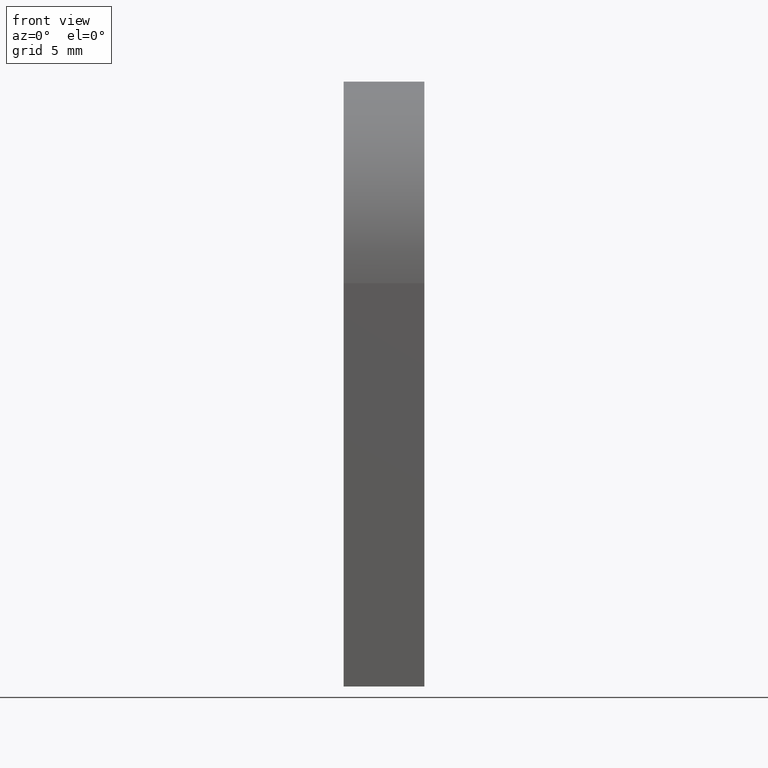
[diagram: clean part render]
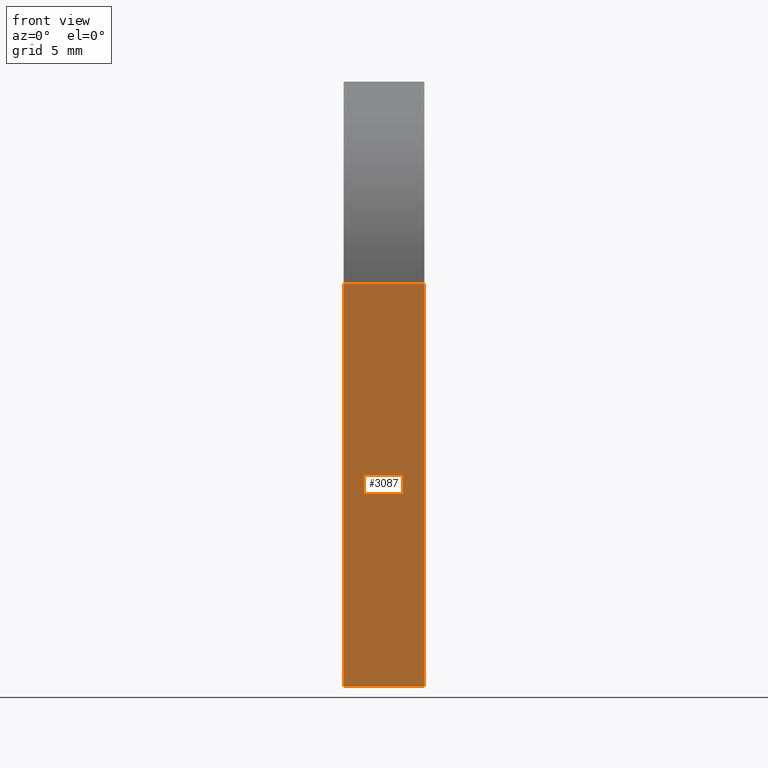
[diagram: same view with one face highlighted and labeled with its STEP entity id]
A machine part, front view. The second image highlights one B-rep face of the part: STEP entity #3087.
In plain terms, the highlighted planar face has unit normal (0, -1, 0).
Its self-contained STEP definition (entity closure, byte-faithful):
#76 = CARTESIAN_POINT ( 'NONE',  ( 2.000000000000000000, -10.00000000000000000, -3.061616997868383000E-015 ) ) ;
#438 = DIRECTION ( 'NONE',  ( -1.000000000000000000, -0.0000000000000000000, -0.0000000000000000000 ) ) ;
#1103 = EDGE_CURVE ( 'NONE', #4537, #1899, #4959, .T. ) ;
#1137 = ORIENTED_EDGE ( 'NONE', *, *, #3159, .T. ) ;
#1451 = DIRECTION ( 'NONE',  ( -1.000000000000000000, -0.0000000000000000000, -0.0000000000000000000 ) ) ;
#1756 = AXIS2_PLACEMENT_3D ( 'NONE', #76, #10573, #7061 ) ;
#1899 = VERTEX_POINT ( 'NONE', #2203 ) ;
#2203 = CARTESIAN_POINT ( 'NONE',  ( -2.000000000000000000, -10.00000000000000000, 19.99999999999999600 ) ) ;
#2790 = VECTOR ( 'NONE', #1451, 1000.000000000000000 ) ;
#3087 = ADVANCED_FACE ( 'NONE', ( #5685 ), #9632, .T. ) ;
#3159 = EDGE_CURVE ( 'NONE', #5457, #4537, #8964, .T. ) ;
#3304 = CARTESIAN_POINT ( 'NONE',  ( 2.000000000000000000, -10.00000000000000000, -3.061616997868383000E-015 ) ) ;
#3499 = CARTESIAN_POINT ( 'NONE',  ( 2.000000000000000000, -10.00000000000000000, 19.99999999999999600 ) ) ;
#3658 = CARTESIAN_POINT ( 'NONE',  ( 2.000000000000000000, -10.00000000000000000, -3.061616997868383000E-015 ) ) ;
#3810 = LINE ( 'NONE', #6847, #6636 ) ;
#3943 = ORIENTED_EDGE ( 'NONE', *, *, #7666, .F. ) ;
#4237 = EDGE_LOOP ( 'NONE', ( #4244, #3943, #1137, #5424 ) ) ;
#4244 = ORIENTED_EDGE ( 'NONE', *, *, #9617, .F. ) ;
#4537 = VERTEX_POINT ( 'NONE', #3499 ) ;
#4959 = LINE ( 'NONE', #9839, #6748 ) ;
#5424 = ORIENTED_EDGE ( 'NONE', *, *, #1103, .T. ) ;
#5457 = VERTEX_POINT ( 'NONE', #3658 ) ;
#5685 = FACE_OUTER_BOUND ( 'NONE', #4237, .T. ) ;
#5975 = DIRECTION ( 'NONE',  ( 0.0000000000000000000, 0.0000000000000000000, 1.000000000000000000 ) ) ;
#6419 = VECTOR ( 'NONE', #10120, 1000.000000000000000 ) ;
#6636 = VECTOR ( 'NONE', #5975, 1000.000000000000000 ) ;
#6748 = VECTOR ( 'NONE', #438, 1000.000000000000000 ) ;
#6847 = CARTESIAN_POINT ( 'NONE',  ( -2.000000000000000000, -10.00000000000000000, -3.061616997868383000E-015 ) ) ;
#7061 = DIRECTION ( 'NONE',  ( 0.0000000000000000000, -0.0000000000000000000, -1.000000000000000000 ) ) ;
#7666 = EDGE_CURVE ( 'NONE', #5457, #10625, #7839, .T. ) ;
#7839 = LINE ( 'NONE', #3304, #2790 ) ;
#8964 = LINE ( 'NONE', #10922, #6419 ) ;
#9617 = EDGE_CURVE ( 'NONE', #10625, #1899, #3810, .T. ) ;
#9632 = PLANE ( 'NONE',  #1756 ) ;
#9839 = CARTESIAN_POINT ( 'NONE',  ( 2.000000000000000000, -10.00000000000000000, 19.99999999999999600 ) ) ;
#10120 = DIRECTION ( 'NONE',  ( 0.0000000000000000000, 0.0000000000000000000, 1.000000000000000000 ) ) ;
#10573 = DIRECTION ( 'NONE',  ( 0.0000000000000000000, -1.000000000000000000, 0.0000000000000000000 ) ) ;
#10625 = VERTEX_POINT ( 'NONE', #11079 ) ;
#10922 = CARTESIAN_POINT ( 'NONE',  ( 2.000000000000000000, -10.00000000000000000, -3.061616997868383000E-015 ) ) ;
#11079 = CARTESIAN_POINT ( 'NONE',  ( -2.000000000000000000, -10.00000000000000000, -3.061616997868383000E-015 ) ) ;